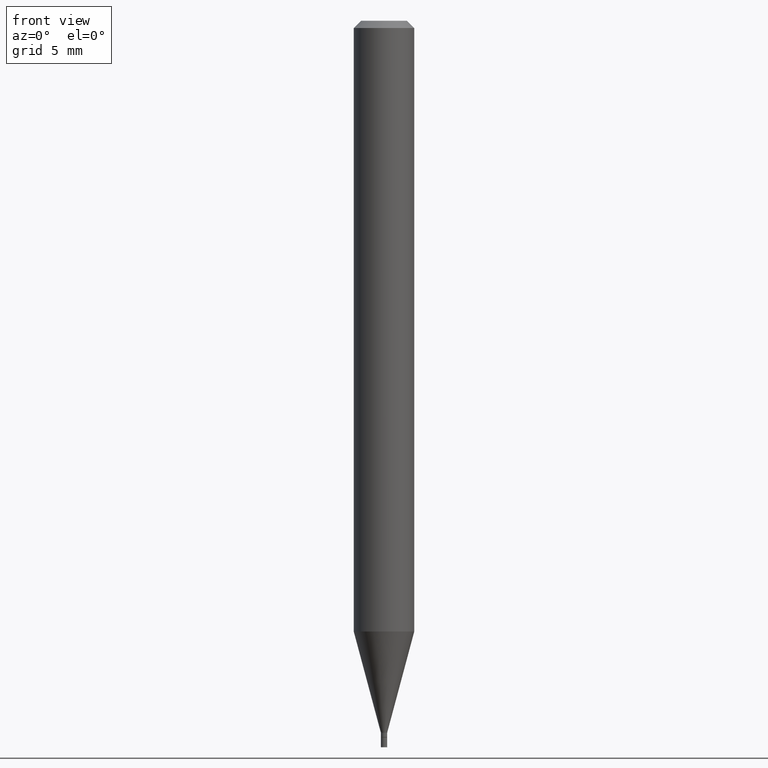
[diagram: clean part render]
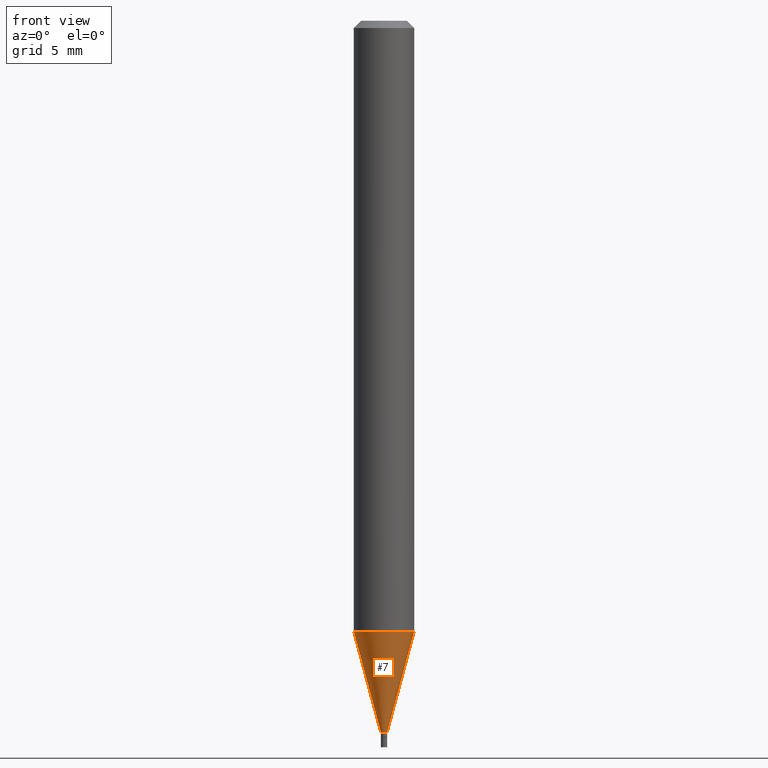
[diagram: same view with one face highlighted and labeled with its STEP entity id]
A machine part, front view. The second image highlights one B-rep face of the part: STEP entity #7.
In plain terms, the highlighted conical surface has half-angle 15 deg.
Its self-contained STEP definition (entity closure, byte-faithful):
#7 = ADVANCED_FACE ( 'NONE', ( #426 ), #38, .T. ) ;
#10 = VERTEX_POINT ( 'NONE', #429 ) ;
#12 = DIRECTION ( 'NONE',  ( -0.2588190451025211281, 5.211531920934547886E-15, 0.9659258262890679791 ) ) ;
#13 = ORIENTED_EDGE ( 'NONE', *, *, #113, .F. ) ;
#23 = CARTESIAN_POINT ( 'NONE',  ( 3.594839145092150820E-29, -5.132477568099424807E-15, -1.470000000000000195 ) ) ;
#27 = CARTESIAN_POINT ( 'NONE',  ( 3.594839145092150820E-29, -5.132477568099424807E-15, -1.470000000000000195 ) ) ;
#36 = DIRECTION ( 'NONE',  ( -2.445468806185136597E-29, 3.491481338843145583E-15, 1.000000000000000000 ) ) ;
#37 = EDGE_CURVE ( 'NONE', #420, #129, #384, .T. ) ;
#38 = CONICAL_SURFACE ( 'NONE', #161, 0.006499999999999919904, 0.2617993877991498519 ) ;
#69 = CARTESIAN_POINT ( 'NONE',  ( 0.006499999999999919904, -5.177866825504383900E-15, -1.470000000000000195 ) ) ;
#70 = VECTOR ( 'NONE', #192, 39.37007874015748854 ) ;
#71 = DIRECTION ( 'NONE',  ( 1.000000000000000000, -6.982962677686262766E-15, 0.000000000000000000 ) ) ;
#73 = AXIS2_PLACEMENT_3D ( 'NONE', #23, #312, #455 ) ;
#89 = EDGE_LOOP ( 'NONE', ( #13, #444, #378, #310 ) ) ;
#100 = DIRECTION ( 'NONE',  ( 1.000000000000000000, -6.982962677686194924E-15, 0.000000000000000000 ) ) ;
#111 = CARTESIAN_POINT ( 'NONE',  ( 3.083748770443718248E-29, -4.402775966085916006E-15, -1.261005154776143167 ) ) ;
#113 = EDGE_CURVE ( 'NONE', #214, #420, #407, .T. ) ;
#129 = VERTEX_POINT ( 'NONE', #346 ) ;
#161 = AXIS2_PLACEMENT_3D ( 'NONE', #27, #176, #100 ) ;
#176 = DIRECTION ( 'NONE',  ( -2.445468806185136597E-29, 3.491481338843145583E-15, 1.000000000000000000 ) ) ;
#183 = EDGE_CURVE ( 'NONE', #10, #129, #297, .T. ) ;
#192 = DIRECTION ( 'NONE',  ( 0.2588190451025211281, 1.565188264969622954E-15, 0.9659258262890679791 ) ) ;
#194 = CARTESIAN_POINT ( 'NONE',  ( -0.006499999999999919904, -4.522489523255436413E-15, -1.470000000000000195 ) ) ;
#212 = CARTESIAN_POINT ( 'NONE',  ( -0.006499999999999919904, -5.086292290275018648E-15, -1.470000000000000195 ) ) ;
#214 = VERTEX_POINT ( 'NONE', #194 ) ;
#297 = LINE ( 'NONE', #69, #70 ) ;
#309 = VECTOR ( 'NONE', #12, 39.37007874015748854 ) ;
#310 = ORIENTED_EDGE ( 'NONE', *, *, #37, .F. ) ;
#312 = DIRECTION ( 'NONE',  ( -2.445468806185136597E-29, 3.491481338843145583E-15, 1.000000000000000000 ) ) ;
#346 = CARTESIAN_POINT ( 'NONE',  ( 0.06250000000000000000, -4.839211133441306886E-15, -1.261005154776143167 ) ) ;
#351 = CARTESIAN_POINT ( 'NONE',  ( -0.06250000000000000000, -3.958686756235853390E-15, -1.261005154776143167 ) ) ;
#378 = ORIENTED_EDGE ( 'NONE', *, *, #183, .T. ) ;
#384 = CIRCLE ( 'NONE', #445, 0.06250000000000000000 ) ;
#407 = LINE ( 'NONE', #212, #309 ) ;
#420 = VERTEX_POINT ( 'NONE', #351 ) ;
#426 = FACE_OUTER_BOUND ( 'NONE', #89, .T. ) ;
#429 = CARTESIAN_POINT ( 'NONE',  ( 0.006499999999999919904, -5.177866825504383900E-15, -1.470000000000000195 ) ) ;
#431 = EDGE_CURVE ( 'NONE', #214, #10, #463, .T. ) ;
#444 = ORIENTED_EDGE ( 'NONE', *, *, #431, .T. ) ;
#445 = AXIS2_PLACEMENT_3D ( 'NONE', #111, #36, #71 ) ;
#455 = DIRECTION ( 'NONE',  ( 1.000000000000000000, -6.982962677686194924E-15, 0.000000000000000000 ) ) ;
#463 = CIRCLE ( 'NONE', #73, 0.006499999999999919904 ) ;